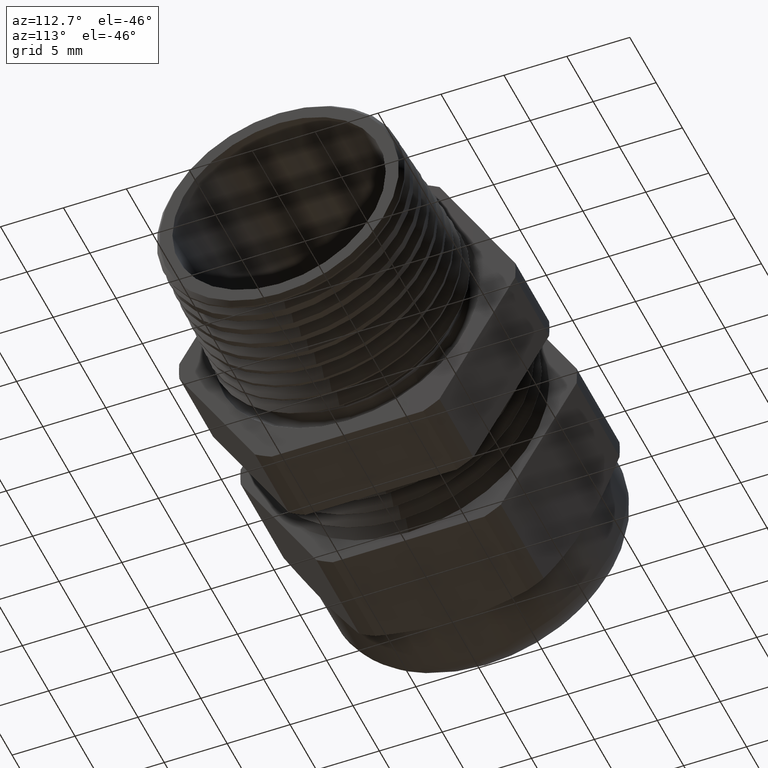
[diagram: clean part render]
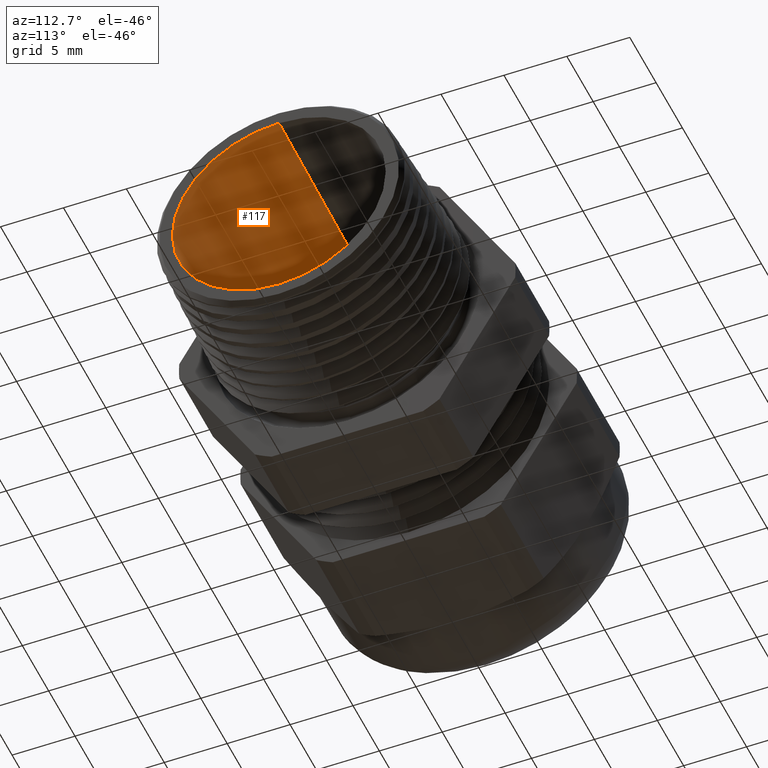
[diagram: same view with one face highlighted and labeled with its STEP entity id]
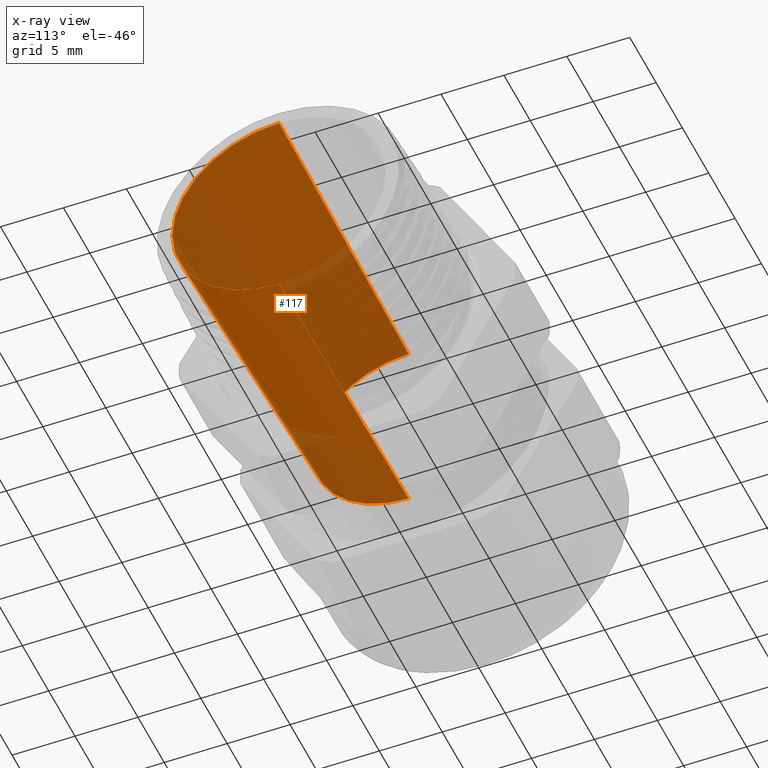
[diagram: x-ray of the same camera — body ghosted, the highlighted face saturated]
A machine part, auxiliary view. The second image highlights one B-rep face of the part: STEP entity #117.
The next image is the same camera in x-ray: the body ghosted, the highlighted face saturated — about 30% of this face is hidden behind the body in this view.
In plain terms, the highlighted conical surface has half-angle 2 deg.
Its self-contained STEP definition (entity closure, byte-faithful):
#77 = EDGE_CURVE ( 'NONE', #101, #112, #648, .T. ) ;
#90 = EDGE_CURVE ( 'NONE', #253, #101, #690, .T. ) ;
#97 = ORIENTED_EDGE ( 'NONE', *, *, #90, .F. ) ;
#101 = VERTEX_POINT ( 'NONE', #729 ) ;
#104 = ORIENTED_EDGE ( 'NONE', *, *, #77, .F. ) ;
#112 = VERTEX_POINT ( 'NONE', #718 ) ;
#114 = ORIENTED_EDGE ( 'NONE', *, *, #175, .T. ) ;
#115 = EDGE_LOOP ( 'NONE', ( #114, #120, #104, #97 ) ) ;
#117 = ADVANCED_FACE ( 'NONE', ( #710 ), #769, .F. ) ;
#119 = EDGE_CURVE ( 'NONE', #245, #112, #768, .T. ) ;
#120 = ORIENTED_EDGE ( 'NONE', *, *, #119, .T. ) ;
#175 = EDGE_CURVE ( 'NONE', #253, #245, #838, .T. ) ;
#245 = VERTEX_POINT ( 'NONE', #1011 ) ;
#253 = VERTEX_POINT ( 'NONE', #1006 ) ;
#645 = DIRECTION ( 'NONE',  ( 0.0000000000000000000, 0.0000000000000000000, 1.000000000000000000 ) ) ;
#646 = DIRECTION ( 'NONE',  ( -1.000000000000000000, 0.0000000000000000000, 0.0000000000000000000 ) ) ;
#647 = AXIS2_PLACEMENT_3D ( 'NONE', #655, #646, #645 ) ;
#648 = CIRCLE ( 'NONE', #647, 0.3338440457657528800 ) ;
#655 = CARTESIAN_POINT ( 'NONE',  ( 0.5100000000000000100, 0.0000000000000000000, 0.0000000000000000000 ) ) ;
#682 = DIRECTION ( 'NONE',  ( 0.9993908270190957600, 0.0000000000000000000, -0.03489949670250173900 ) ) ;
#683 = VECTOR ( 'NONE', #682, 39.37007874015748900 ) ;
#684 = CARTESIAN_POINT ( 'NONE',  ( -0.4591666666666666700, 0.0000000000000000000, -0.2999999999999999900 ) ) ;
#690 = LINE ( 'NONE', #684, #683 ) ;
#710 = FACE_OUTER_BOUND ( 'NONE', #115, .T. ) ;
#718 = CARTESIAN_POINT ( 'NONE',  ( 0.5100000000000000100, 4.088410420614317000E-017, 0.3338440457657528800 ) ) ;
#729 = CARTESIAN_POINT ( 'NONE',  ( 0.5100000000000000100, 0.0000000000000000000, -0.3338440457657528800 ) ) ;
#761 = DIRECTION ( 'NONE',  ( 0.9993908270190957600, 4.273955692857236600E-018, 0.03489949670250173900 ) ) ;
#762 = VECTOR ( 'NONE', #761, 39.37007874015748900 ) ;
#763 = CARTESIAN_POINT ( 'NONE',  ( -0.4591666666666666700, 3.673940397442058900E-017, 0.2999999999999999900 ) ) ;
#764 = DIRECTION ( 'NONE',  ( 0.0000000000000000000, 0.0000000000000000000, -1.000000000000000000 ) ) ;
#765 = DIRECTION ( 'NONE',  ( 1.000000000000000000, 0.0000000000000000000, 0.0000000000000000000 ) ) ;
#766 = CARTESIAN_POINT ( 'NONE',  ( -0.4591666666666666700, 0.0000000000000000000, 0.0000000000000000000 ) ) ;
#767 = AXIS2_PLACEMENT_3D ( 'NONE', #766, #765, #764 ) ;
#768 = LINE ( 'NONE', #763, #762 ) ;
#769 = CONICAL_SURFACE ( 'NONE', #767, 0.2999999999999999900, 0.03490658503988736100 ) ;
#834 = DIRECTION ( 'NONE',  ( 0.0000000000000000000, 0.0000000000000000000, 1.000000000000000000 ) ) ;
#835 = DIRECTION ( 'NONE',  ( -1.000000000000000000, 0.0000000000000000000, 0.0000000000000000000 ) ) ;
#836 = CARTESIAN_POINT ( 'NONE',  ( -0.4591666666666666700, 0.0000000000000000000, 0.0000000000000000000 ) ) ;
#837 = AXIS2_PLACEMENT_3D ( 'NONE', #836, #835, #834 ) ;
#838 = CIRCLE ( 'NONE', #837, 0.2999999999999999900 ) ;
#1006 = CARTESIAN_POINT ( 'NONE',  ( -0.4591666666666666700, 0.0000000000000000000, -0.2999999999999999900 ) ) ;
#1011 = CARTESIAN_POINT ( 'NONE',  ( -0.4591666666666666700, 3.881175409028188200E-017, 0.2999999999999999900 ) ) ;